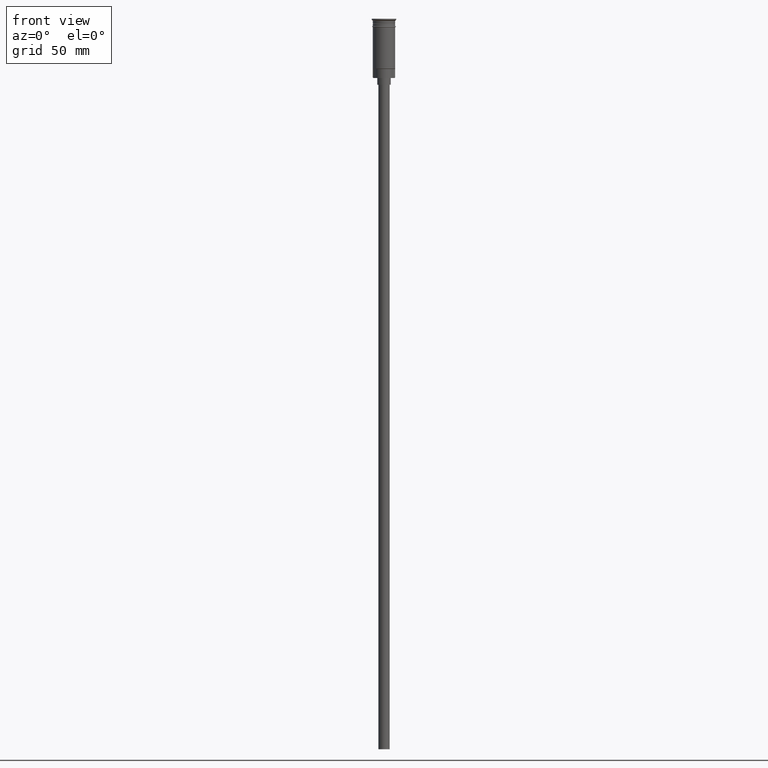
[diagram: clean part render]
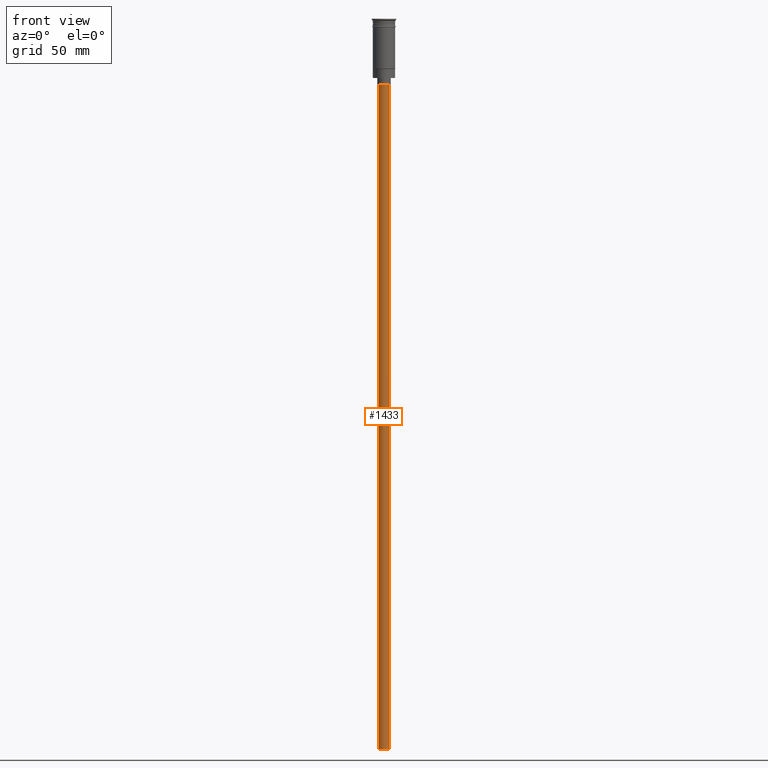
[diagram: same view with one face highlighted and labeled with its STEP entity id]
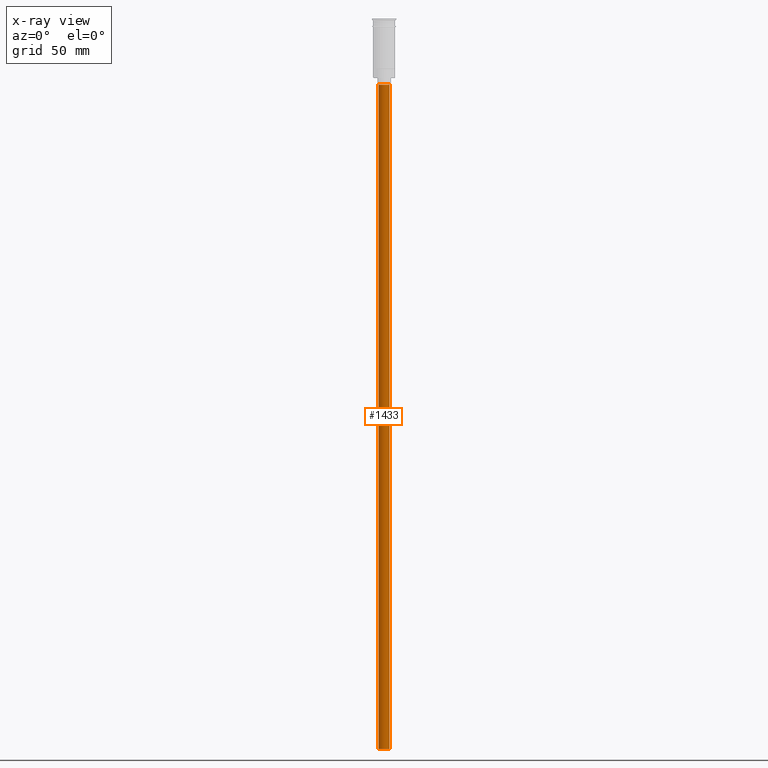
[diagram: x-ray of the same camera — body ghosted, the highlighted face saturated]
A machine part, front view. The second image highlights one B-rep face of the part: STEP entity #1433.
The next image is the same camera in x-ray: the body ghosted, the highlighted face saturated — about 0% of this face is hidden behind the body in this view.
In plain terms, the highlighted cylindrical surface (edge-blend (fillet) strip) has radius 2.5 mm, axis along (-0, -0, 1).
Its self-contained STEP definition (entity closure, byte-faithful):
#30 = CARTESIAN_POINT ( 'NONE',  ( -2.500000000000000000, 3.061616997868383141E-16, -326.5000000000000000 ) ) ;
#43 = EDGE_CURVE ( 'NONE', #67, #469, #1335, .T. ) ;
#67 = VERTEX_POINT ( 'NONE', #752 ) ;
#77 = AXIS2_PLACEMENT_3D ( 'NONE', #954, #678, #898 ) ;
#122 = DIRECTION ( 'NONE',  ( -0.000000000000000000, -0.000000000000000000, 1.000000000000000000 ) ) ;
#149 = VERTEX_POINT ( 'NONE', #986 ) ;
#219 = DIRECTION ( 'NONE',  ( 1.000000000000000000, 0.000000000000000000, 0.000000000000000000 ) ) ;
#240 = CIRCLE ( 'NONE', #77, 2.500000000000000000 ) ;
#269 = ORIENTED_EDGE ( 'NONE', *, *, #43, .F. ) ;
#277 = DIRECTION ( 'NONE',  ( -0.000000000000000000, -0.000000000000000000, 1.000000000000000000 ) ) ;
#281 = EDGE_CURVE ( 'NONE', #149, #1165, #240, .T. ) ;
#350 = DIRECTION ( 'NONE',  ( -0.000000000000000000, -0.000000000000000000, 1.000000000000000000 ) ) ;
#368 = CARTESIAN_POINT ( 'NONE',  ( 2.500000000000000000, 0.000000000000000000, -326.5000000000000000 ) ) ;
#393 = DIRECTION ( 'NONE',  ( 0.000000000000000000, 0.000000000000000000, -1.000000000000000000 ) ) ;
#427 = CARTESIAN_POINT ( 'NONE',  ( 0.000000000000000000, 0.000000000000000000, -326.5000000000000000 ) ) ;
#469 = VERTEX_POINT ( 'NONE', #30 ) ;
#600 = ORIENTED_EDGE ( 'NONE', *, *, #281, .T. ) ;
#678 = DIRECTION ( 'NONE',  ( 0.000000000000000000, 0.000000000000000000, -1.000000000000000000 ) ) ;
#752 = CARTESIAN_POINT ( 'NONE',  ( 2.500000000000000000, 0.000000000000000000, -326.5000000000000000 ) ) ;
#753 = AXIS2_PLACEMENT_3D ( 'NONE', #427, #122, #219 ) ;
#834 = ORIENTED_EDGE ( 'NONE', *, *, #1387, .T. ) ;
#846 = EDGE_LOOP ( 'NONE', ( #1160, #269, #834, #600 ) ) ;
#876 = CARTESIAN_POINT ( 'NONE',  ( 0.000000000000000000, 0.000000000000000000, -326.5000000000000000 ) ) ;
#898 = DIRECTION ( 'NONE',  ( -1.000000000000000000, 0.000000000000000000, 0.000000000000000000 ) ) ;
#954 = CARTESIAN_POINT ( 'NONE',  ( 0.000000000000000000, 0.000000000000000000, -29.50000000000000000 ) ) ;
#962 = LINE ( 'NONE', #368, #1237 ) ;
#982 = DIRECTION ( 'NONE',  ( -1.000000000000000000, 0.000000000000000000, 0.000000000000000000 ) ) ;
#986 = CARTESIAN_POINT ( 'NONE',  ( 2.500000000000000000, 0.000000000000000000, -29.50000000000000000 ) ) ;
#1030 = FACE_OUTER_BOUND ( 'NONE', #846, .T. ) ;
#1160 = ORIENTED_EDGE ( 'NONE', *, *, #1247, .F. ) ;
#1165 = VERTEX_POINT ( 'NONE', #1581 ) ;
#1201 = LINE ( 'NONE', #1472, #1470 ) ;
#1237 = VECTOR ( 'NONE', #277, 1000.000000000000000 ) ;
#1247 = EDGE_CURVE ( 'NONE', #469, #1165, #1201, .T. ) ;
#1335 = CIRCLE ( 'NONE', #1366, 2.500000000000000000 ) ;
#1366 = AXIS2_PLACEMENT_3D ( 'NONE', #876, #393, #982 ) ;
#1387 = EDGE_CURVE ( 'NONE', #67, #149, #962, .T. ) ;
#1433 = ADVANCED_FACE ( 'NONE', ( #1030 ), #1539, .T. ) ;
#1470 = VECTOR ( 'NONE', #350, 1000.000000000000000 ) ;
#1472 = CARTESIAN_POINT ( 'NONE',  ( -2.500000000000000000, 3.061616997868383141E-16, -326.5000000000000000 ) ) ;
#1539 = CYLINDRICAL_SURFACE ( 'NONE', #753, 2.500000000000000000 ) ;
#1581 = CARTESIAN_POINT ( 'NONE',  ( -2.500000000000000000, 3.061616997868383141E-16, -29.50000000000000000 ) ) ;